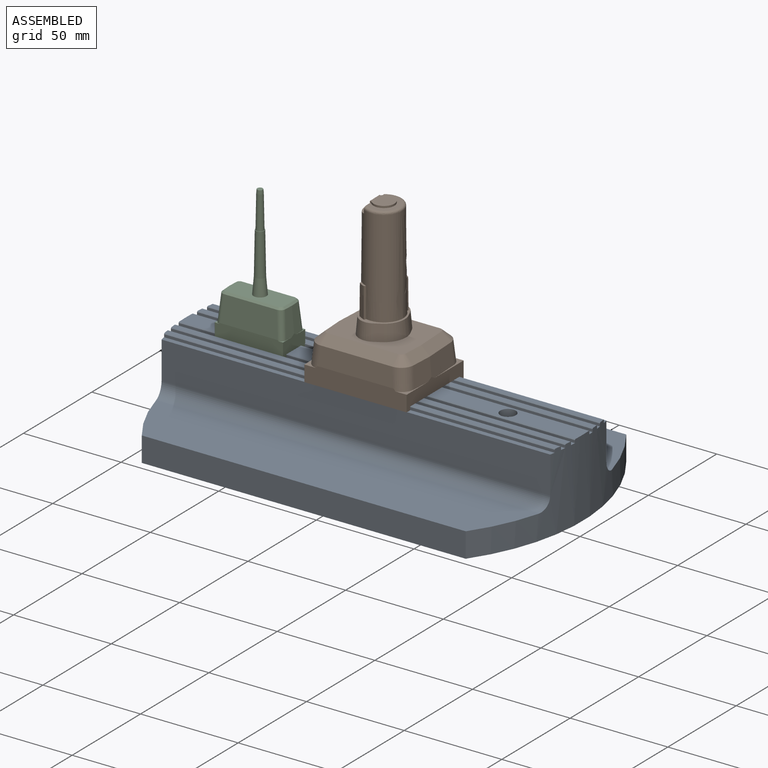
[diagram: assembled view]
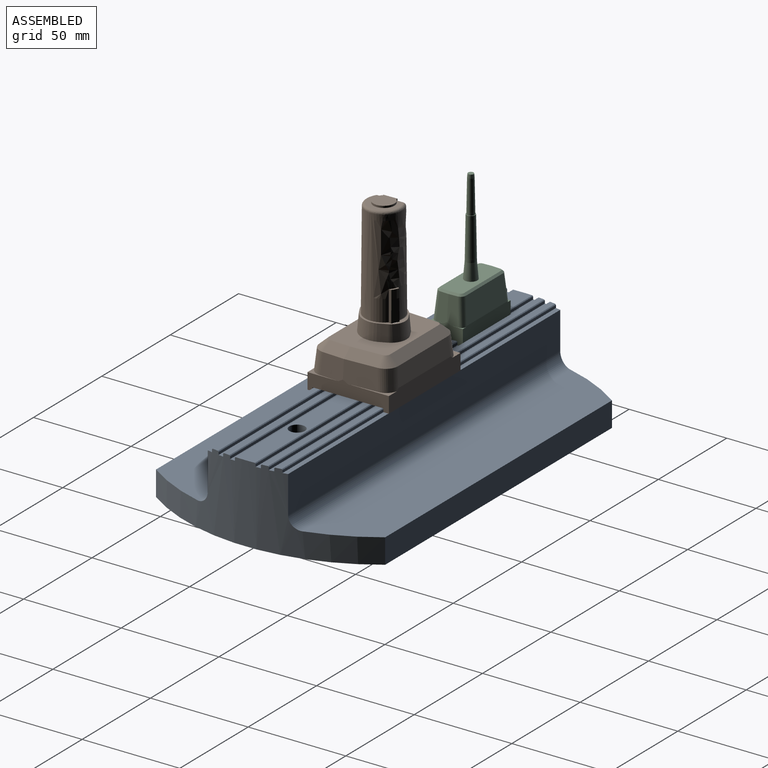
[diagram: assembled view, second angle]
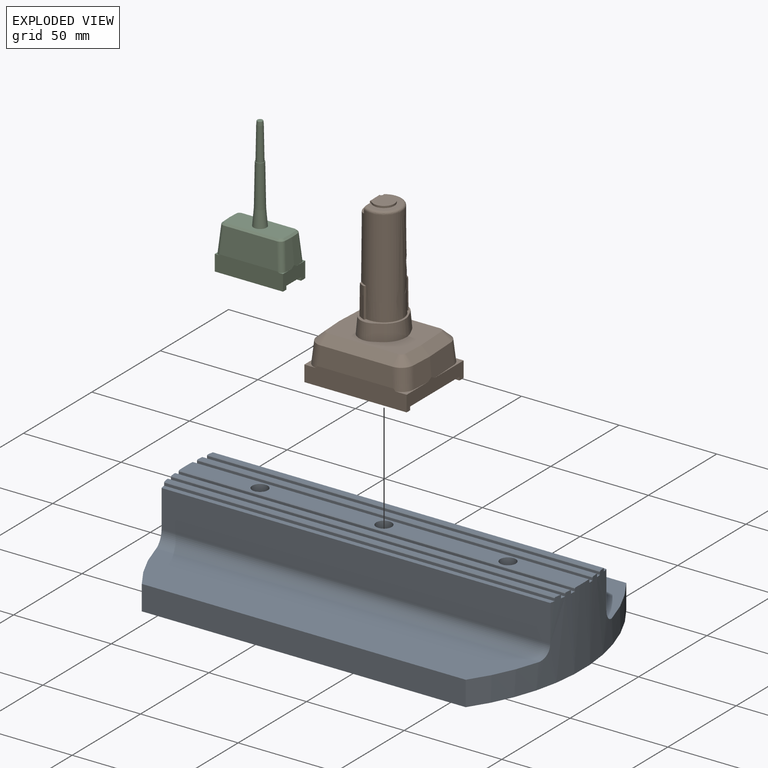
[diagram: exploded view]
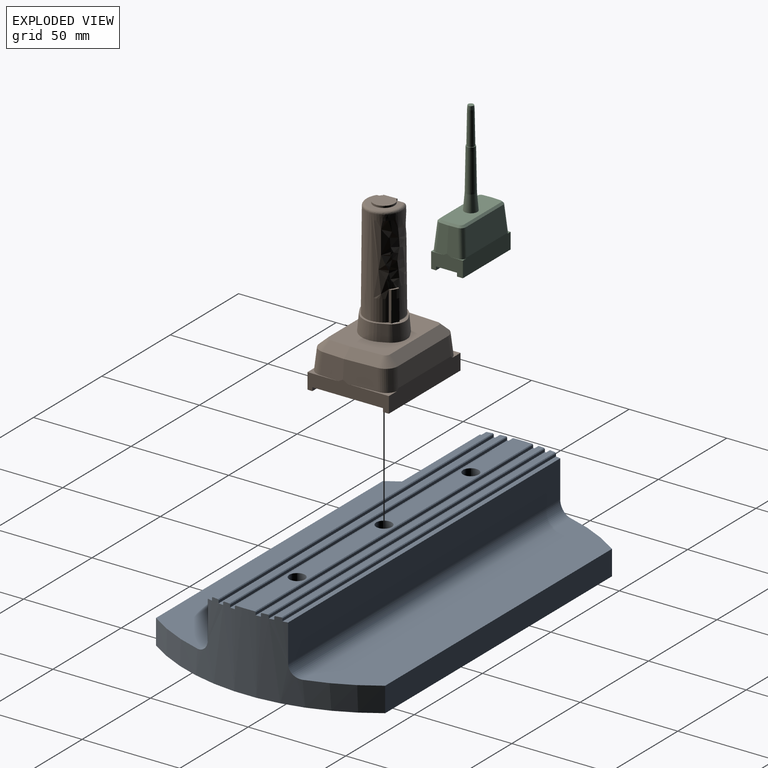
[diagram: exploded view, second angle]
ASSEMBLY  parts=3 mates=2
PART A: 50 faces, bbox 203.2x117.3x39.9 mm
  f0: plane 34.93x28.45mm, normal (0,0,-1), area 943.3mm2, adj f10,f40,f41,f42,f45
  f1: plane 199.97x2.54mm, normal (0,0,1), area 506.7mm2, adj f6,f7,f11,f27
  f2: plane 199.97x2.54mm, normal (0,0,1), area 506.7mm2, adj f7,f8,f11,f23
  f3: plane 202.92x2.54mm, normal (0,0,1), area 515mm2, adj f7,f11,f14,f21
  f4: plane 201.85x2.54mm, normal (0,0,1), area 511.9mm2, adj f7,f11,f18,f24
  f5: plane 201.85x2.54mm, normal (0,0,1), area 511.9mm2, adj f7,f11,f20,f26
  f6: plane 198.99x19.05mm, normal (0,-1,0), area 3790.8mm2, adj f1,f7,f11,f48
  f7: cylinder r=101.6mm len=117.35mm, axis (0,0,1), area 2704.6mm2, adj f1,f2,f3,f4,f5,f6,f8,f13
  f8: plane 198.99x19.05mm, normal (0,1,0), area 3790.8mm2, adj f2,f7,f11,f49
  f9: cylinder r=4mm len=39.88mm, axis (0,0,1), area 1002.2mm2, adj f16,f46
  f10: cylinder r=4mm len=27.18mm, axis (0,0,1), area 683.1mm2, adj f0,f16
  f11: cylinder r=101.6mm len=117.35mm, axis (0,0,1), area 2704.6mm2, adj f1,f2,f3,f4,f5,f6,f8,f13
  f12: cylinder r=4mm len=39.88mm, axis (0,0,1), area 1002.2mm2, adj f16,f46
  f13: plane 202.92x2.54mm, normal (0,0,1), area 515mm2, adj f7,f11,f15,f17
  f14: plane 202.92x1.4mm, normal (0,-1,0), area 283.5mm2, adj f3,f7,f11,f34
  f15: plane 202.92x1.4mm, normal (0,1,0), area 283.5mm2, adj f7,f11,f13,f33
  f16: plane 203.2x9.91mm, normal (0,0,1), area 1861.3mm2, adj f7,f9,f10,f11,f12,f33,f34
  f17: plane 202.59x1.4mm, normal (0,-1,0), area 283mm2, adj f7,f11,f13,f32
  f18: plane 201.85x1.4mm, normal (0,1,0), area 282mm2, adj f4,f7,f11,f31
  f19: plane 202.53x3.05mm, normal (0,0,1), area 616.5mm2, adj f7,f11,f31,f32
  f20: plane 201.85x1.4mm, normal (0,-1,0), area 282mm2, adj f5,f7,f11,f36
  f21: plane 202.59x1.4mm, normal (0,1,0), area 283mm2, adj f3,f7,f11,f35
  f22: plane 202.53x3.05mm, normal (0,0,1), area 616.5mm2, adj f7,f11,f35,f36
  f23: plane 199.97x1.4mm, normal (0,1,0), area 279.4mm2, adj f2,f7,f11,f29
  f24: plane 201.2x1.4mm, normal (0,-1,0), area 281.1mm2, adj f4,f7,f11,f30
  f25: plane 201.09x3.05mm, normal (0,0,1), area 611.5mm2, adj f7,f11,f29,f30
  f26: plane 201.2x1.4mm, normal (0,1,0), area 281.1mm2, adj f5,f7,f11,f37
  f27: plane 199.97x1.4mm, normal (0,-1,0), area 279.4mm2, adj f1,f7,f11,f38
  f28: plane 201.09x3.05mm, normal (0,0,1), area 611.5mm2, adj f7,f11,f37,f38
  f29: plane 200.11x0.38mm, normal (0,0.71,0.71), area 107.8mm2, adj f7,f11,f23,f25
  f30: plane 201.2x0.38mm, normal (0,-0.71,0.71), area 108.4mm2, adj f7,f11,f24,f25
  f31: plane 201.94x0.38mm, normal (0,0.71,0.71), area 108.8mm2, adj f7,f11,f18,f19
  f32: plane 202.59x0.38mm, normal (0,-0.71,0.71), area 109.1mm2, adj f7,f11,f17,f19
  f33: plane 202.96x0.38mm, normal (0,0.71,0.71), area 109.3mm2, adj f7,f11,f15,f16
  f34: plane 202.96x0.38mm, normal (0,-0.71,0.71), area 109.3mm2, adj f7,f11,f14,f16
  f35: plane 202.59x0.38mm, normal (0,0.71,0.71), area 109.1mm2, adj f7,f11,f21,f22
  f36: plane 201.94x0.38mm, normal (0,-0.71,0.71), area 108.8mm2, adj f7,f11,f20,f22
  f37: plane 201.2x0.38mm, normal (0,0.71,0.71), area 108.4mm2, adj f7,f11,f26,f28
  f38: plane 200.11x0.38mm, normal (0,-0.71,0.71), area 107.8mm2, adj f7,f11,f27,f28
  f39: plane 195.94x31.75mm, normal (0,0,1), area 5815.7mm2, adj f7,f11,f43,f48
  f40: plane 34.93x12.7mm, normal (0,1,0), area 443.5mm2, adj f0,f41,f45,f46
  f41: plane 28.45x12.7mm, normal (1,0,0), area 361.3mm2, adj f0,f40,f42,f46
  f42: plane 34.93x12.7mm, normal (0,-1,0), area 443.5mm2, adj f0,f41,f45,f46
  f43: plane 165.89x12.7mm, normal (0,-1,0), area 2106.8mm2, adj f7,f11,f39,f46
  f44: plane 165.89x12.7mm, normal (0,1,0), area 2106.8mm2, adj f7,f11,f46,f47
  f45: plane 28.45x12.7mm, normal (-1,0,0), area 361.3mm2, adj f0,f40,f42,f46
  f46: plane 203.2x117.35mm, normal (0,0,-1), area 21349.8mm2, adj f7,f9,f11,f12,f40,f41,f42,f43
  f47: plane 195.94x31.75mm, normal (0,0,1), area 5815.7mm2, adj f7,f11,f44,f49
  f48: cylinder r=6.35mm len=198.99mm, axis (-1,0,0), area 1974.4mm2, adj f6,f7,f11,f39
  f49: cylinder r=6.35mm len=198.99mm, axis (1,0,0), area 1974.4mm2, adj f7,f8,f11,f47
PART B: 99 faces, bbox 53.1x42.5x83.8 mm
  f0: plane 52.92x9.73mm, normal (0,1,0), area 468.9mm2, adj f1,f2,f3,f4,f12,f28,f29,f30
  f1: plane 37.88x9.52mm, normal (0,1,0.09), area 354.3mm2, adj f0,f2,f30,f31,f33,f93
  f2: cylinder r=6.42mm len=6.66mm, axis (0.08,-0.09,0.99), area 33.3mm2, adj f0,f1,f3,f5,f93
  f3: plane 21.55x6.43mm, normal (0,0,1), area 19.1mm2, adj f0,f2,f4,f5
  f4: plane 41.66x9.52mm, normal (-1,0,0), area 278.2mm2, adj f0,f3,f5,f6,f7,f13,f14,f15
  f5: plane 17.58x10.59mm, normal (-0.99,0.05,0.09), area 180.5mm2, adj f2,f3,f4,f6,f35,f93
  f6: plane 12.18x10.59mm, normal (-0.99,-0.05,0.09), area 123mm2, adj f4,f5,f7,f8,f36,f92
  f7: plane 16.16x6.15mm, normal (0,0,1), area 13.8mm2, adj f4,f6,f8,f13
  f8: cylinder r=6.42mm len=6.66mm, axis (-0.08,-0.09,-0.99), area 33.3mm2, adj f6,f7,f9,f13,f92
  f9: plane 38.44x9.52mm, normal (0,-1,0.09), area 359.8mm2, adj f8,f10,f13,f38,f44,f92
  f10: cylinder r=6.42mm len=6.66mm, axis (-0.08,0.09,0.99), area 33.3mm2, adj f9,f11,f13,f43,f44
  f11: plane 16.16x6.15mm, normal (0,0,1), area 13.8mm2, adj f10,f12,f13,f43
  f12: plane 41.66x9.52mm, normal (1,0,0), area 278.2mm2, adj f0,f11,f13,f14,f15,f16,f27,f28
  f13: plane 52.76x9.58mm, normal (0,-1,0), area 469.5mm2, adj f4,f7,f8,f9,f10,f11,f12,f14
  f14: plane 52.4x2.5mm, normal (0,0,-1), area 130.8mm2, adj f4,f12,f13,f15
  f15: plane 52.4x1.78mm, normal (0,1,0), area 93.2mm2, adj f4,f12,f14,f16
  f16: plane 52.4x36.16mm, normal (0,0,-1), area 1826.7mm2, adj f4,f12,f15,f17,f19,f21,f23,f25
  f17: cylinder r=1.69mm len=15.88mm, axis (0,0,-1), area 84.2mm2, adj f16,f18,f98
  f18: plane 3.38x3.38mm, normal (0,0,-1), area 9mm2, adj f17,f98
  f19: cylinder r=1.69mm len=15.88mm, axis (0,0,-1), area 84.2mm2, adj f16,f20,f97
  f20: plane 3.38x3.38mm, normal (0,0,-1), area 9mm2, adj f19,f97
  f21: cylinder r=1.69mm len=15.88mm, axis (0,0,-1), area 84.2mm2, adj f16,f22,f96
  f22: plane 3.38x3.38mm, normal (0,0,-1), area 9mm2, adj f21,f96
  f23: cylinder r=1.69mm len=15.88mm, axis (0,0,-1), area 84.2mm2, adj f16,f24,f95
  f24: plane 3.38x3.38mm, normal (0,0,-1), area 9mm2, adj f23,f95
  f25: cylinder r=3.2mm len=6.39mm, axis (0,0,-1), area 63.7mm2, adj f16,f26,f94
  f26: plane 6.39x6.39mm, normal (0,0,-1), area 32.1mm2, adj f25,f94
  f27: plane 52.4x1.78mm, normal (0,-1,0), area 93.2mm2, adj f4,f12,f16,f28
  f28: plane 52.4x3mm, normal (0,0,-1), area 157.4mm2, adj f0,f4,f12,f27
  f29: plane 21.56x6.43mm, normal (0,0,1), area 19.1mm2, adj f0,f12,f30,f42
  f30: cylinder r=6.42mm len=6.66mm, axis (-0.08,-0.09,0.99), area 33.1mm2, adj f0,f1,f29,f31,f42
  f31: cylinder r=6.42mm len=7.36mm, axis (-0.08,-0.09,0.99), area 69.7mm2, adj f1,f30,f32,f42
  f32: bspline ~6.71x6.62mm, area 40.1mm2, adj f31,f33,f41,f45
  f33: plane 36.3x4.45mm, normal (0,0.68,0.74), area 217.1mm2, adj f1,f32,f34,f45
  f34: bspline ~6.71x6.62mm, area 40.1mm2, adj f33,f35,f45,f93
  f35: plane 16.65x5.3mm, normal (-0.67,0.04,0.74), area 98.9mm2, adj f5,f34,f36,f45
  f36: plane 11.25x5.02mm, normal (-0.67,-0.04,0.74), area 66.3mm2, adj f6,f35,f37,f45
  f37: bspline ~6.71x6.62mm, area 40.1mm2, adj f36,f38,f45,f92
  f38: plane 36.86x4.45mm, normal (0,-0.68,0.74), area 220.5mm2, adj f9,f37,f39,f45
  f39: bspline ~6.71x6.62mm, area 40.1mm2, adj f38,f40,f44,f45
  f40: plane 11.25x5.02mm, normal (0.67,-0.04,0.74), area 66.3mm2, adj f39,f41,f43,f45
  f41: plane 16.65x5.3mm, normal (0.67,0.04,0.74), area 98.9mm2, adj f32,f40,f42,f45
  f42: plane 17.58x10.59mm, normal (0.99,0.05,0.09), area 180.5mm2, adj f12,f29,f30,f31,f41,f43
  f43: plane 12.18x10.59mm, normal (0.99,-0.05,0.09), area 123mm2, adj f10,f11,f12,f40,f42,f44
  f44: cylinder r=6.42mm len=7.36mm, axis (-0.08,0.09,0.99), area 69.7mm2, adj f9,f10,f39,f43
  f45: plane 41.87x31.09mm, normal (0,0,1), area 837.6mm2, adj f32,f33,f34,f35,f36,f37,f38,f39
  f46: plane 8.19x0.82mm, normal (0.99,-0.07,0.09), area 6.4mm2, adj f45,f47,f48,f86
  f47: plane 8.19x0.8mm, normal (0.99,0.07,0.09), area 6.2mm2, adj f45,f46,f48,f91
  f48: plane 23.88x21.24mm, normal (0,0,1), area 62.6mm2, adj f46,f47,f49,f50,f61,f62,f63,f64
  f49: revolved ~10.98x3.47mm, area 42.2mm2, adj f48,f50,f68,f69
  f50: plane 15.47x1.07mm, normal (0.87,-0.48,0.01), area 15.6mm2, adj f48,f49,f51,f52,f69,f73,f77
  f51: plane 3.74x3.04mm, normal (0,0,1), area 4mm2, adj f50,f52,f68,f69
  f52: revolved ~49.63x19.47mm, area 1364.1mm2, adj f50,f51,f53,f58,f59,f60,f67,f68
  f53: plane 16.5x4.57mm, normal (-1,-0.01,0), area 56.4mm2, adj f52,f54,f55,f57,f58,f60,f74,f75
  f54: plane 12.96x10.78mm, normal (0,-0.01,1), area 88.5mm2, adj f53,f55,f56,f76
  f55: plane 0.97x0.6mm, normal (0.27,-0.96,0), area 0.6mm2, adj f53,f54,f56,f57
  f56: cylinder r=5.36mm len=10.72mm, axis (0,0,-1), area 25.4mm2, adj f54,f55,f57,f76
  f57: plane 16.7x13.5mm, normal (0,-0.01,1), area 83.3mm2, adj f53,f55,f56,f58,f59,f75,f76
  f58: bspline ~5.36x2.73mm, area 9.9mm2, adj f52,f53,f57,f59
  f59: bspline ~18.6x9.3mm, area 55.3mm2, adj f52,f57,f58,f60,f75
  f60: revolved ~49.7x19.47mm, area 1366.8mm2, adj f52,f53,f59,f61,f62,f64,f65,f67
  f61: revolved ~7.45x3.49mm, area 3.3mm2, adj f48,f60,f62,f73
  f62: plane 15.53x1.45mm, normal (1,0,0.01), area 20.1mm2, adj f48,f60,f61,f63,f65,f66
  f63: revolved ~10.98x3.47mm, area 42.2mm2, adj f48,f62,f64,f66
  f64: plane 15.47x1.07mm, normal (-0.87,0.48,0.01), area 15.6mm2, adj f48,f60,f63,f65,f66,f67,f70
  f65: plane 3.74x3.04mm, normal (0,0,1), area 4mm2, adj f60,f62,f64,f66
  f66: cylinder r=10.62mm len=4.47mm, axis (0,0.01,-1), area 16.7mm2, adj f62,f63,f64,f65
  f67: revolved ~17.42x12.85mm, area 10.5mm2, adj f48,f52,f60,f64,f68
  f68: plane 15.53x1.45mm, normal (-1,0,0.01), area 20.1mm2, adj f48,f49,f51,f52,f67,f69
  f69: cylinder r=10.62mm len=4.47mm, axis (0,-0.01,-1), area 16.7mm2, adj f49,f50,f51,f68
  f70: cylinder r=9.63mm len=4.63mm, axis (0,0.01,-1), area 6.2mm2, adj f60,f64,f71
  f71: cylinder r=9.64mm len=6.51mm, axis (0,0.01,-1), area 3.4mm2, adj f60,f70,f72
  f72: cylinder r=9.64mm len=6.51mm, axis (0,0.01,-1), area 16.5mm2, adj f60,f71
  f73: revolved ~12.85x9.99mm, area 7.3mm2, adj f48,f50,f52,f61
  f74: plane 16.11x4.71mm, normal (-0.22,-0.01,0.97), area 54.4mm2, adj f52,f53,f60
  f75: bspline ~5.5x2.84mm, area 10.3mm2, adj f53,f57,f59,f60
  f76: plane 0.97x0.6mm, normal (0.25,0.97,0), area 0.6mm2, adj f53,f54,f56,f57
  f77: cylinder r=9.63mm len=4.47mm, axis (0,-0.01,-1), area 5.4mm2, adj f50,f52,f78
  f78: cylinder r=9.64mm len=6.51mm, axis (0,-0.01,-1), area 6.3mm2, adj f52,f77,f79
  f79: cylinder r=9.64mm len=6.51mm, axis (0,-0.01,-1), area 14.4mm2, adj f52,f78
  f80: plane 8.19x0.82mm, normal (-0.99,0.07,0.09), area 6.4mm2, adj f45,f48,f81,f87
  f81: plane 8.19x0.8mm, normal (-0.99,-0.07,0.09), area 6.2mm2, adj f45,f48,f80,f82
  f82: bspline ~8.18x4.31mm, area 35.3mm2, adj f45,f48,f81,f83
  f83: plane 8.24x3.13mm, normal (-0.9,-0.42,0.09), area 25.2mm2, adj f45,f48,f82,f84
  f84: bspline ~11.56x8.18mm, area 107.7mm2, adj f45,f48,f83,f85
  f85: plane 8.24x3.06mm, normal (0.49,-0.86,0.09), area 25.2mm2, adj f45,f48,f84,f86
  f86: bspline ~9.21x8.18mm, area 90.5mm2, adj f45,f46,f48,f85
  f87: bspline ~9.21x8.18mm, area 90.5mm2, adj f45,f48,f80,f88
  f88: plane 8.24x3.06mm, normal (-0.49,0.86,0.09), area 25.2mm2, adj f45,f48,f87,f89
  f89: bspline ~11.56x8.18mm, area 107.6mm2, adj f45,f48,f88,f90
  f90: plane 8.24x3.13mm, normal (0.9,0.42,0.09), area 25.2mm2, adj f45,f48,f89,f91
  f91: bspline ~8.18x4.31mm, area 35.3mm2, adj f45,f47,f48,f90
  f92: cylinder r=6.42mm len=7.36mm, axis (-0.08,-0.09,-0.99), area 69.7mm2, adj f6,f8,f9,f37
  f93: cylinder r=6.42mm len=7.36mm, axis (0.08,-0.09,0.99), area 69.7mm2, adj f1,f2,f5,f34
  f94: cylinder r=3.2mm len=6.39mm, axis (0,0,-1), area 63.7mm2, adj f16,f25,f26
  f95: cylinder r=1.69mm len=15.88mm, axis (0,0,-1), area 84.2mm2, adj f16,f23,f24
  f96: cylinder r=1.69mm len=15.88mm, axis (0,0,-1), area 84.2mm2, adj f16,f21,f22
  f97: cylinder r=1.69mm len=15.88mm, axis (0,0,-1), area 84.2mm2, adj f16,f19,f20
  f98: cylinder r=1.69mm len=15.88mm, axis (0,0,-1), area 84.2mm2, adj f16,f17,f18
PART C: 61 faces, bbox 35.1x16.5x71.7 mm
  f0: plane 35.14x8.8mm, normal (0,1,0), area 297.7mm2, adj f1,f2,f3,f4,f12,f24,f25,f26
  f1: plane 29.34x13.24mm, normal (0,1,0.09), area 375.3mm2, adj f0,f2,f26,f27,f29,f57
  f2: cylinder r=2.57mm len=7.31mm, axis (0.08,-0.09,0.99), area 28mm2, adj f0,f1,f3,f5,f57
  f3: plane 6.46x2.46mm, normal (0,0,1), area 2.2mm2, adj f0,f2,f4,f5
  f4: plane 16.26x9.23mm, normal (-1,0,0), area 115.3mm2, adj f0,f3,f5,f6,f7,f13,f14,f15
  f5: plane 13.67x5.75mm, normal (-0.99,0.05,0.09), area 69.8mm2, adj f2,f3,f4,f6,f31,f57
  f6: plane 13.67x5.75mm, normal (-0.99,-0.05,0.09), area 69.8mm2, adj f4,f5,f7,f8,f32,f56
  f7: plane 6.46x2.46mm, normal (0,0,1), area 2.2mm2, adj f4,f6,f8,f13
  f8: cylinder r=2.57mm len=7.31mm, axis (0.08,0.09,0.99), area 28mm2, adj f6,f7,f9,f13,f56
  f9: plane 29.34x13.24mm, normal (0,-1,0.09), area 375.3mm2, adj f8,f10,f13,f34,f40,f56
  f10: cylinder r=2.57mm len=7.31mm, axis (0.08,-0.09,-0.99), area 28mm2, adj f9,f11,f13,f39,f40
  f11: plane 6.46x2.46mm, normal (0,0,1), area 2.2mm2, adj f10,f12,f13,f39
  f12: plane 16.26x9.23mm, normal (1,0,0), area 115.3mm2, adj f0,f11,f13,f14,f15,f16,f23,f24
  f13: plane 35.14x8.8mm, normal (0,-1,0), area 297.7mm2, adj f4,f7,f8,f9,f10,f11,f12,f14
  f14: plane 34.93x2.5mm, normal (0,0,-1), area 87.2mm2, adj f4,f12,f13,f15
  f15: plane 34.93x1.78mm, normal (0,1,0), area 62.1mm2, adj f4,f12,f14,f16
  f16: plane 34.93x10.76mm, normal (0,0,-1), area 331.6mm2, adj f4,f12,f15,f17,f19,f21,f23,f58
  f17: cylinder r=1.38mm len=15.88mm, axis (0,0,-1), area 69mm2, adj f16,f18,f60
  f18: plane 2.77x2.77mm, normal (0,0,-1), area 6mm2, adj f17,f60
  f19: cylinder r=1.38mm len=15.88mm, axis (0,0,-1), area 69mm2, adj f16,f20,f59
  f20: plane 2.77x2.77mm, normal (0,0,-1), area 6mm2, adj f19,f59
  f21: cylinder r=3.2mm len=6.39mm, axis (0,0,-1), area 63.7mm2, adj f16,f22,f58
  f22: plane 6.39x6.39mm, normal (0,0,-1), area 32.1mm2, adj f21,f58
  f23: plane 34.93x1.78mm, normal (0,-1,0), area 62.1mm2, adj f4,f12,f16,f24
  f24: plane 34.93x3mm, normal (0,0,-1), area 104.9mm2, adj f0,f4,f12,f23
  f25: plane 6.46x2.46mm, normal (0,0,1), area 2.2mm2, adj f0,f12,f26,f38
  f26: cylinder r=2.57mm len=7.31mm, axis (-0.08,-0.09,0.99), area 28mm2, adj f0,f1,f25,f27,f38
  f27: cylinder r=2.57mm len=6.56mm, axis (-0.08,-0.09,0.99), area 25.3mm2, adj f1,f26,f28,f38
  f28: bspline ~2.63x2.55mm, area 4.4mm2, adj f27,f29,f37,f41
  f29: plane 27.14x1.02mm, normal (0,0.68,0.74), area 37.4mm2, adj f1,f28,f30,f41
  f30: bspline ~2.63x2.55mm, area 4.4mm2, adj f29,f31,f41,f57
  f31: plane 4.55x1.25mm, normal (-0.67,0.04,0.74), area 6.2mm2, adj f5,f30,f32,f41
  f32: plane 4.55x1.25mm, normal (-0.67,-0.04,0.74), area 6.2mm2, adj f6,f31,f33,f41
  f33: bspline ~2.63x2.55mm, area 4.4mm2, adj f32,f34,f41,f56
  f34: plane 27.14x1.02mm, normal (0,-0.68,0.74), area 37.4mm2, adj f9,f33,f35,f41
  f35: bspline ~2.63x2.55mm, area 4.4mm2, adj f34,f36,f40,f41
  f36: plane 4.55x1.25mm, normal (0.67,-0.04,0.74), area 6.2mm2, adj f35,f37,f39,f41
  f37: plane 4.55x1.25mm, normal (0.67,0.04,0.74), area 6.2mm2, adj f28,f36,f38,f41
  f38: plane 13.67x5.75mm, normal (0.99,0.05,0.09), area 69.8mm2, adj f12,f25,f26,f27,f37,f39
  f39: plane 13.67x5.75mm, normal (0.99,-0.05,0.09), area 69.8mm2, adj f10,f11,f12,f36,f38,f40
  f40: cylinder r=2.57mm len=6.56mm, axis (0.08,-0.09,-0.99), area 25.3mm2, adj f9,f10,f35,f39
  f41: plane 30.73x11.96mm, normal (0,0,1), area 324.8mm2, adj f28,f29,f30,f31,f32,f33,f34,f35
  f42: bspline ~8.4x3.32mm, area 38.8mm2, adj f41,f43,f45,f47
  f43: bspline ~8.4x3.32mm, area 38.8mm2, adj f41,f42,f44,f47
  f44: bspline ~8.4x3.32mm, area 38.8mm2, adj f41,f43,f45,f46
  f45: bspline ~8.4x3.32mm, area 38.8mm2, adj f41,f42,f44,f46
  f46: cone r=2.38mm half-angle=1deg, axis (0,0,-1), area 162.4mm2, adj f44,f45,f47,f48
  f47: cone r=2.38mm half-angle=1deg, axis (0,0,-1), area 162.4mm2, adj f42,f43,f46,f48
  f48: plane 4.41x4.41mm, normal (0,0,1), area 4mm2, adj f46,f47,f49,f53
  f49: cone r=1.74mm half-angle=1deg, axis (0,0,-1), area 93mm2, adj f48,f50,f51,f53
  f50: bspline ~1.87x1.6mm, area 4.4mm2, adj f49,f51,f54,f55
  f51: bspline ~1.87x1.6mm, area 4.4mm2, adj f49,f50,f52,f55
  f52: bspline ~1.87x1.6mm, area 4.4mm2, adj f51,f53,f54,f55
  f53: cone r=1.74mm half-angle=1deg, axis (0,0,-1), area 93mm2, adj f48,f49,f52,f54
  f54: bspline ~1.87x1.6mm, area 4.4mm2, adj f50,f52,f53,f55
  f55: plane 2.89x2.89mm, normal (0,0,1), area 6.5mm2, adj f50,f51,f52,f54
  f56: cylinder r=2.57mm len=6.56mm, axis (0.08,0.09,0.99), area 25.3mm2, adj f6,f8,f9,f33
  f57: cylinder r=2.57mm len=6.56mm, axis (0.08,-0.09,0.99), area 25.3mm2, adj f1,f2,f5,f30
  f58: cylinder r=3.2mm len=6.39mm, axis (0,0,-1), area 63.7mm2, adj f16,f21,f22
  f59: cylinder r=1.38mm len=15.88mm, axis (0,0,-1), area 69mm2, adj f16,f19,f20
  f60: cylinder r=1.38mm len=15.88mm, axis (0,0,-1), area 69mm2, adj f16,f17,f18
PLACE A t=(229.85,-14.55,-23.02)mm
PLACE B t=(229.85,-14.55,-21.24)mm
PLACE C t=(166.35,-14.55,-21.24)mm
MATE slider A.f10 <-> C.f16  axis (0,0,1) through (229.85,-14.55,-21.24)mm
MATE fastened B.f25 <-> A.f10  axis (0,0,-1) through (229.85,-14.55,-21.24)mm
